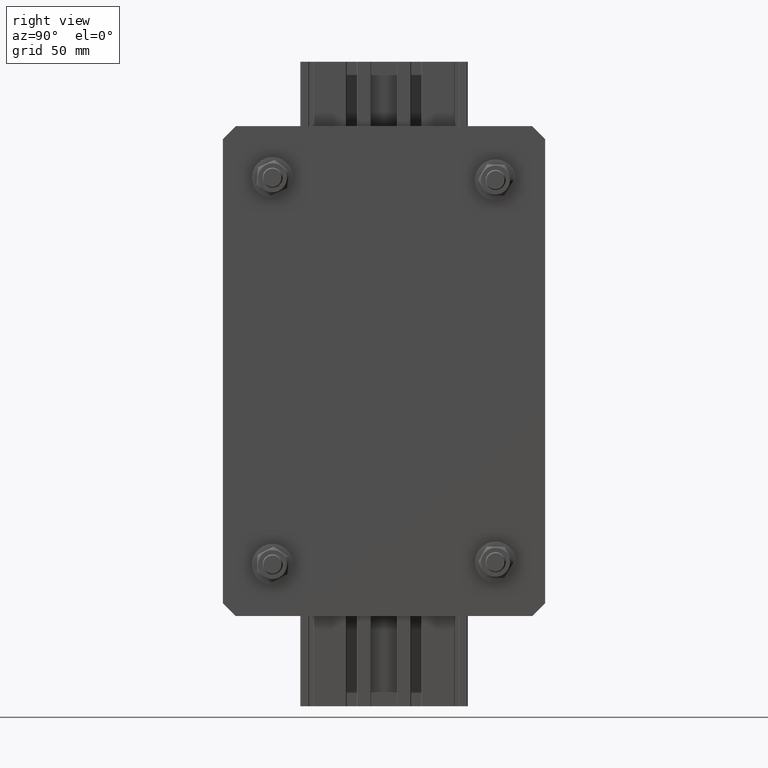
[diagram: clean part render]
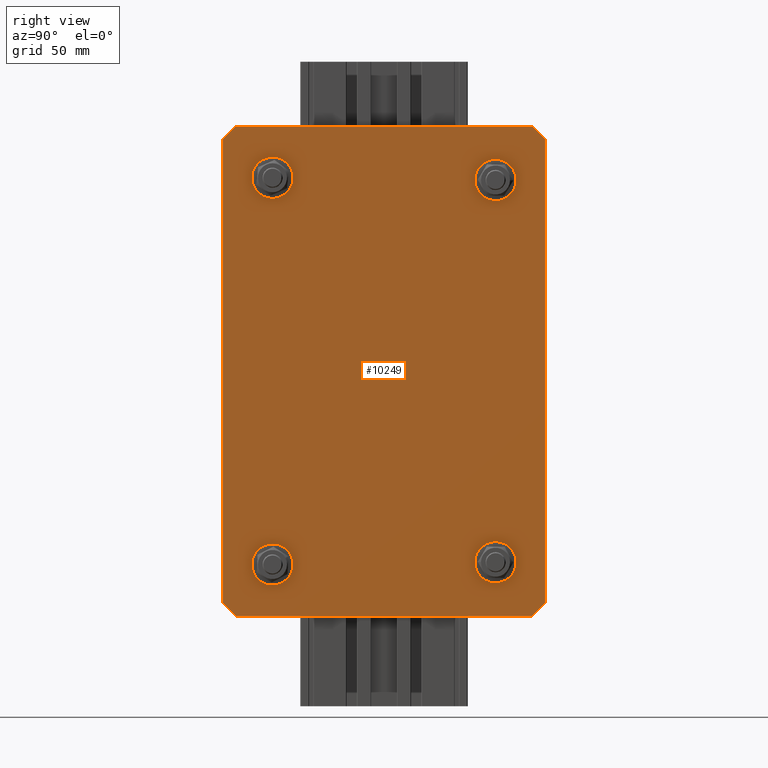
[diagram: same view with one face highlighted and labeled with its STEP entity id]
A machine part, right view. The second image highlights one B-rep face of the part: STEP entity #10249.
In plain terms, the highlighted planar face has unit normal (1, 0, -0).
Its self-contained STEP definition (entity closure, byte-faithful):
#631=FACE_BOUND('',#1751,.T.);
#632=FACE_BOUND('',#1752,.T.);
#633=FACE_BOUND('',#1753,.T.);
#634=FACE_BOUND('',#1754,.T.);
#1164=FACE_OUTER_BOUND('',#1750,.T.);
#1750=EDGE_LOOP('',(#9360,#9361,#9362,#9363,#9364,#9365,#9366,#9367));
#1751=EDGE_LOOP('',(#9368));
#1752=EDGE_LOOP('',(#9369));
#1753=EDGE_LOOP('',(#9370));
#1754=EDGE_LOOP('',(#9371));
#2258=CIRCLE('',#11602,12.);
#2259=CIRCLE('',#11604,12.);
#2260=CIRCLE('',#11606,12.);
#2261=CIRCLE('',#11608,12.);
#3003=LINE('',#18677,#3772);
#3009=LINE('',#18688,#3778);
#3016=LINE('',#18711,#3785);
#3019=LINE('',#18716,#3788);
#3020=LINE('',#18720,#3789);
#3023=LINE('',#18724,#3792);
#3024=LINE('',#18727,#3793);
#3030=LINE('',#18746,#3799);
#3772=VECTOR('',#14454,10.);
#3778=VECTOR('',#14462,10.);
#3785=VECTOR('',#14481,10.);
#3788=VECTOR('',#14486,10.);
#3789=VECTOR('',#14489,10.);
#3792=VECTOR('',#14494,10.);
#3793=VECTOR('',#14497,10.);
#3799=VECTOR('',#14521,10.);
#4794=VERTEX_POINT('',#18675);
#4795=VERTEX_POINT('',#18676);
#4799=VERTEX_POINT('',#18686);
#4809=VERTEX_POINT('',#18710);
#4810=VERTEX_POINT('',#18714);
#4811=VERTEX_POINT('',#18718);
#4812=VERTEX_POINT('',#18719);
#4813=VERTEX_POINT('',#18726);
#4814=VERTEX_POINT('',#18730);
#4815=VERTEX_POINT('',#18734);
#4816=VERTEX_POINT('',#18738);
#4817=VERTEX_POINT('',#18742);
#6300=EDGE_CURVE('',#4794,#4795,#3003,.T.);
#6306=EDGE_CURVE('',#4794,#4799,#3009,.T.);
#6317=EDGE_CURVE('',#4809,#4799,#3016,.T.);
#6320=EDGE_CURVE('',#4809,#4810,#3019,.T.);
#6321=EDGE_CURVE('',#4811,#4812,#3020,.T.);
#6324=EDGE_CURVE('',#4811,#4795,#3023,.T.);
#6325=EDGE_CURVE('',#4813,#4810,#3024,.T.);
#6327=EDGE_CURVE('',#4814,#4814,#2258,.T.);
#6329=EDGE_CURVE('',#4815,#4815,#2259,.T.);
#6331=EDGE_CURVE('',#4816,#4816,#2260,.T.);
#6333=EDGE_CURVE('',#4817,#4817,#2261,.T.);
#6335=EDGE_CURVE('',#4813,#4812,#3030,.T.);
#9360=ORIENTED_EDGE('',*,*,#6300,.F.);
#9361=ORIENTED_EDGE('',*,*,#6306,.T.);
#9362=ORIENTED_EDGE('',*,*,#6317,.F.);
#9363=ORIENTED_EDGE('',*,*,#6320,.T.);
#9364=ORIENTED_EDGE('',*,*,#6325,.F.);
#9365=ORIENTED_EDGE('',*,*,#6335,.T.);
#9366=ORIENTED_EDGE('',*,*,#6321,.F.);
#9367=ORIENTED_EDGE('',*,*,#6324,.T.);
#9368=ORIENTED_EDGE('',*,*,#6327,.T.);
#9369=ORIENTED_EDGE('',*,*,#6329,.T.);
#9370=ORIENTED_EDGE('',*,*,#6331,.T.);
#9371=ORIENTED_EDGE('',*,*,#6333,.T.);
#9719=PLANE('',#11610);
#10249=ADVANCED_FACE('',(#1164,#631,#632,#633,#634),#9719,.T.);
#11602=AXIS2_PLACEMENT_3D('',#18731,#14501,#14502);
#11604=AXIS2_PLACEMENT_3D('',#18735,#14506,#14507);
#11606=AXIS2_PLACEMENT_3D('',#18739,#14511,#14512);
#11608=AXIS2_PLACEMENT_3D('',#18743,#14516,#14517);
#11610=AXIS2_PLACEMENT_3D('',#18747,#14522,#14523);
#14454=DIRECTION('',(0.707106781186548,0.707106781186548,0.));
#14462=DIRECTION('',(0.,-1.,0.));
#14481=DIRECTION('',(-0.707106781186548,0.707106781186548,0.));
#14486=DIRECTION('',(1.,0.,0.));
#14489=DIRECTION('',(0.707106781186548,-0.707106781186548,0.));
#14494=DIRECTION('',(-1.,0.,0.));
#14497=DIRECTION('',(-0.707106781186548,-0.707106781186548,0.));
#14501=DIRECTION('center_axis',(0.,0.,-1.));
#14502=DIRECTION('ref_axis',(1.,0.,0.));
#14506=DIRECTION('center_axis',(0.,0.,-1.));
#14507=DIRECTION('ref_axis',(1.,0.,0.));
#14511=DIRECTION('center_axis',(0.,0.,-1.));
#14512=DIRECTION('ref_axis',(1.,0.,0.));
#14516=DIRECTION('center_axis',(0.,0.,-1.));
#14517=DIRECTION('ref_axis',(1.,0.,0.));
#14521=DIRECTION('',(0.,1.,0.));
#14522=DIRECTION('center_axis',(0.,0.,1.));
#14523=DIRECTION('ref_axis',(1.,0.,0.));
#18675=CARTESIAN_POINT('',(-125.,180.,12.));
#18676=CARTESIAN_POINT('',(-115.,190.,12.));
#18677=CARTESIAN_POINT('',(-136.25,168.75,12.));
#18686=CARTESIAN_POINT('',(-125.,-180.,12.));
#18688=CARTESIAN_POINT('',(-125.,-190.,12.));
#18710=CARTESIAN_POINT('',(-115.,-190.,12.));
#18711=CARTESIAN_POINT('',(-136.25,-168.75,12.));
#18714=CARTESIAN_POINT('',(115.,-190.,12.));
#18716=CARTESIAN_POINT('',(125.,-190.,12.));
#18718=CARTESIAN_POINT('',(115.,190.,12.));
#18719=CARTESIAN_POINT('',(125.,180.,12.));
#18720=CARTESIAN_POINT('',(136.25,168.75,12.));
#18724=CARTESIAN_POINT('',(-125.,190.,12.));
#18726=CARTESIAN_POINT('',(125.,-180.,12.));
#18727=CARTESIAN_POINT('',(136.25,-168.75,12.));
#18730=CARTESIAN_POINT('',(-98.5,-150.,12.));
#18731=CARTESIAN_POINT('Origin',(-86.5,-150.,12.));
#18734=CARTESIAN_POINT('',(-98.5,150.,12.));
#18735=CARTESIAN_POINT('Origin',(-86.5,150.,12.));
#18738=CARTESIAN_POINT('',(74.5,150.,12.));
#18739=CARTESIAN_POINT('Origin',(86.5,150.,12.));
#18742=CARTESIAN_POINT('',(74.5,-150.,12.));
#18743=CARTESIAN_POINT('Origin',(86.5,-150.,12.));
#18746=CARTESIAN_POINT('',(125.,190.,12.));
#18747=CARTESIAN_POINT('Origin',(0.,0.,12.));